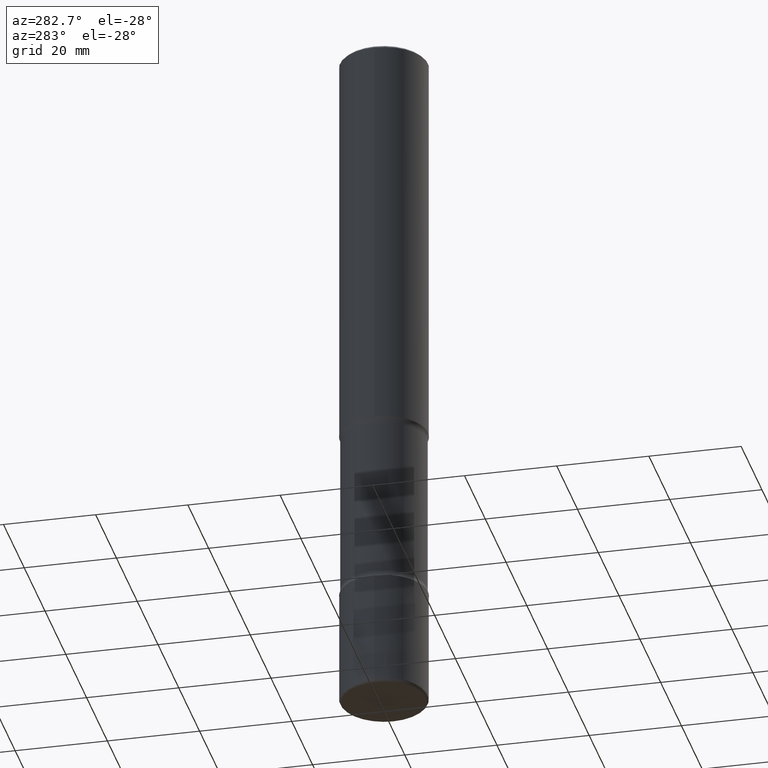
[diagram: clean part render]
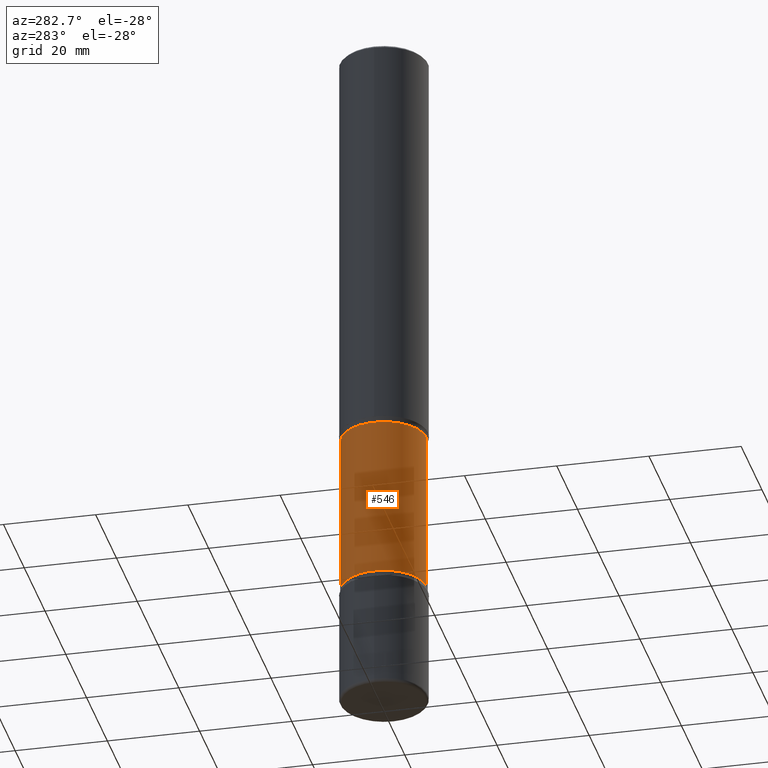
[diagram: same view with one face highlighted and labeled with its STEP entity id]
A machine part, auxiliary view. The second image highlights one B-rep face of the part: STEP entity #546.
In plain terms, the highlighted cylindrical surface (partial cylindrical patch) has radius 9.271 mm, axis along (0, -0, -1).
Its self-contained STEP definition (entity closure, byte-faithful):
#1 = VECTOR ( 'NONE', #90, 39.37007874015748143 ) ;
#4 = VERTEX_POINT ( 'NONE', #304 ) ;
#19 = EDGE_CURVE ( 'NONE', #489, #4, #247, .T. ) ;
#29 = CARTESIAN_POINT ( 'NONE',  ( 8.402143433667099614E-29, -1.278762557225431035E-14, -3.548989794855665014 ) ) ;
#37 = VERTEX_POINT ( 'NONE', #430 ) ;
#48 = CARTESIAN_POINT ( 'NONE',  ( -2.538384259175386404E-15, -0.3650000000000130362, -3.548989794855664126 ) ) ;
#55 = DIRECTION ( 'NONE',  ( 2.636232731993832963E-29, -3.218296539476719458E-15, -1.000000000000000000 ) ) ;
#65 = VERTEX_POINT ( 'NONE', #48 ) ;
#90 = DIRECTION ( 'NONE',  ( 2.636232731993832963E-29, -3.218296539476719458E-15, -1.000000000000000000 ) ) ;
#96 = VECTOR ( 'NONE', #55, 39.37007874015748143 ) ;
#105 = DIRECTION ( 'NONE',  ( 6.982962677686265922E-15, 1.000000000000000000, -2.993806020453986646E-15 ) ) ;
#133 = CARTESIAN_POINT ( 'NONE',  ( 1.209819553019351831E-28, -1.729974300696207142E-14, -4.951010205144336318 ) ) ;
#139 = CARTESIAN_POINT ( 'NONE',  ( 2.548781377355636207E-15, 0.3649999999999793965, -6.000000000000001776 ) ) ;
#145 = EDGE_CURVE ( 'NONE', #37, #4, #181, .T. ) ;
#153 = CARTESIAN_POINT ( 'NONE',  ( -2.504081769186460699E-15, -0.3650000000000207523, -5.999999999999999112 ) ) ;
#181 = LINE ( 'NONE', #139, #1 ) ;
#186 = CYLINDRICAL_SURFACE ( 'NONE', #188, 0.3650000000000000466 ) ;
#188 = AXIS2_PLACEMENT_3D ( 'NONE', #359, #483, #105 ) ;
#215 = ORIENTED_EDGE ( 'NONE', *, *, #386, .T. ) ;
#218 = AXIS2_PLACEMENT_3D ( 'NONE', #29, #293, #495 ) ;
#247 = CIRCLE ( 'NONE', #537, 0.3649999999999999356 ) ;
#254 = EDGE_CURVE ( 'NONE', #65, #489, #445, .T. ) ;
#267 = DIRECTION ( 'NONE',  ( 6.982962677686265922E-15, 1.000000000000000000, -2.993806020453987435E-15 ) ) ;
#275 = CARTESIAN_POINT ( 'NONE',  ( -2.538384259175344988E-15, -0.3650000000000171996, -4.951010205144335430 ) ) ;
#293 = DIRECTION ( 'NONE',  ( 2.636232731993832963E-29, -3.218296539476719458E-15, -1.000000000000000000 ) ) ;
#304 = CARTESIAN_POINT ( 'NONE',  ( 2.548781377355607414E-15, 0.3649999999999826716, -4.951010205144337206 ) ) ;
#342 = ORIENTED_EDGE ( 'NONE', *, *, #145, .T. ) ;
#359 = CARTESIAN_POINT ( 'NONE',  ( 1.486357676291951651E-28, -2.067570323369244855E-14, -6.000000000000000888 ) ) ;
#386 = EDGE_CURVE ( 'NONE', #65, #37, #455, .T. ) ;
#387 = DIRECTION ( 'NONE',  ( 2.636232731993832963E-29, -3.218296539476719458E-15, -1.000000000000000000 ) ) ;
#398 = FACE_OUTER_BOUND ( 'NONE', #457, .T. ) ;
#423 = ORIENTED_EDGE ( 'NONE', *, *, #19, .F. ) ;
#430 = CARTESIAN_POINT ( 'NONE',  ( 2.548781377355573099E-15, 0.3649999999999875011, -3.548989794855666347 ) ) ;
#445 = LINE ( 'NONE', #153, #96 ) ;
#455 = CIRCLE ( 'NONE', #218, 0.3650000000000002687 ) ;
#457 = EDGE_LOOP ( 'NONE', ( #499, #215, #342, #423 ) ) ;
#483 = DIRECTION ( 'NONE',  ( 2.636232731993832963E-29, -3.218296539476719458E-15, -1.000000000000000000 ) ) ;
#489 = VERTEX_POINT ( 'NONE', #275 ) ;
#495 = DIRECTION ( 'NONE',  ( 6.982962677686266711E-15, 1.000000000000000000, -2.993806020453985068E-15 ) ) ;
#499 = ORIENTED_EDGE ( 'NONE', *, *, #254, .F. ) ;
#537 = AXIS2_PLACEMENT_3D ( 'NONE', #133, #387, #267 ) ;
#546 = ADVANCED_FACE ( 'NONE', ( #398 ), #186, .T. ) ;